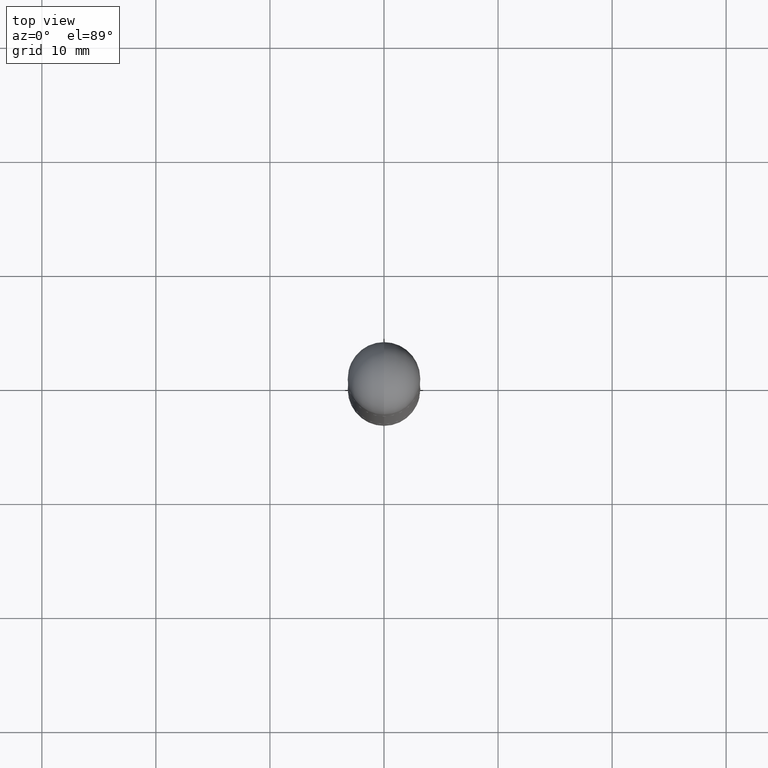
[diagram: clean part render]
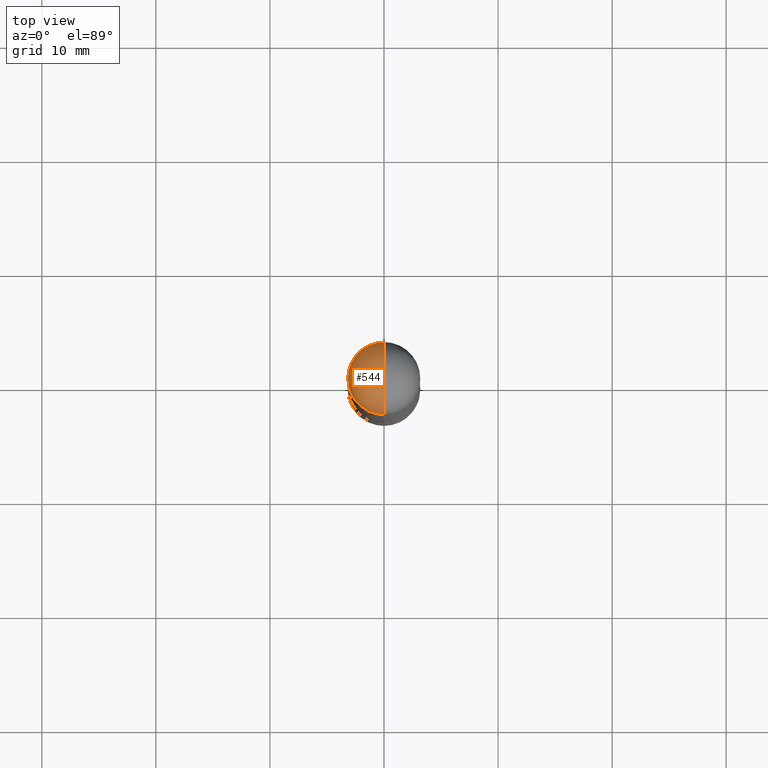
[diagram: same view with one face highlighted and labeled with its STEP entity id]
A machine part, top view. The second image highlights one B-rep face of the part: STEP entity #544.
In plain terms, the highlighted spherical surface has radius 3.175 mm.
Its self-contained STEP definition (entity closure, byte-faithful):
#4 = DIRECTION ( 'NONE',  ( 2.445468806185136597E-29, -3.491481338843145583E-15, 1.000000000000000000 ) ) ;
#5 = DIRECTION ( 'NONE',  ( 2.445468806185136597E-29, -3.491481338843145583E-15, 1.000000000000000000 ) ) ;
#7 = AXIS2_PLACEMENT_3D ( 'NONE', #644, #702, #696 ) ;
#41 = ORIENTED_EDGE ( 'NONE', *, *, #239, .F. ) ;
#43 = ORIENTED_EDGE ( 'NONE', *, *, #677, .T. ) ;
#64 = AXIS2_PLACEMENT_3D ( 'NONE', #216, #4, #392 ) ;
#68 = CARTESIAN_POINT ( 'NONE',  ( -8.575622497213856334E-16, -0.1250000000000086320, -0.1250000000000008882 ) ) ;
#73 = CARTESIAN_POINT ( 'NONE',  ( 5.476868636775814291E-29, -8.766450547892521992E-15, -0.1250000000000004441 ) ) ;
#74 = AXIS2_PLACEMENT_3D ( 'NONE', #256, #750, #698 ) ;
#147 = CIRCLE ( 'NONE', #64, 0.1250000000000000000 ) ;
#180 = VERTEX_POINT ( 'NONE', #617 ) ;
#181 = VERTEX_POINT ( 'NONE', #501 ) ;
#192 = FACE_OUTER_BOUND ( 'NONE', #215, .T. ) ;
#210 = EDGE_CURVE ( 'NONE', #422, #181, #147, .T. ) ;
#215 = EDGE_LOOP ( 'NONE', ( #41, #43, #733, #665 ) ) ;
#216 = CARTESIAN_POINT ( 'NONE',  ( 5.807988414689700538E-29, -8.292268179752471696E-15, -0.1250000000000004441 ) ) ;
#239 = EDGE_CURVE ( 'NONE', #180, #600, #430, .T. ) ;
#253 = DIRECTION ( 'NONE',  ( -1.000000000000000000, 6.982962677686265922E-15, 4.883557194083112340E-29 ) ) ;
#256 = CARTESIAN_POINT ( 'NONE',  ( 5.476868636775814291E-29, -8.766450547892521992E-15, -0.1250000000000004441 ) ) ;
#364 = AXIS2_PLACEMENT_3D ( 'NONE', #567, #5, #763 ) ;
#392 = DIRECTION ( 'NONE',  ( 1.000000000000000000, -6.982962677686270655E-15, 0.000000000000000000 ) ) ;
#422 = VERTEX_POINT ( 'NONE', #634 ) ;
#430 = CIRCLE ( 'NONE', #7, 0.1250000000000001943 ) ;
#491 = DIRECTION ( 'NONE',  ( -6.982962677686265133E-15, -1.000000000000000000, 0.000000000000000000 ) ) ;
#501 = CARTESIAN_POINT ( 'NONE',  ( -0.1250000000000000000, -6.780053178997941168E-15, -0.1250000000000004441 ) ) ;
#536 = AXIS2_PLACEMENT_3D ( 'NONE', #73, #253, #491 ) ;
#544 = ADVANCED_FACE ( 'NONE', ( #192 ), #744, .T. ) ;
#567 = CARTESIAN_POINT ( 'NONE',  ( 5.807988414689700538E-29, -8.292268179752471696E-15, -0.1250000000000004441 ) ) ;
#600 = VERTEX_POINT ( 'NONE', #68 ) ;
#617 = CARTESIAN_POINT ( 'NONE',  ( 5.787897026856327965E-29, -9.195231672753244292E-15, -2.561107494060246644E-16 ) ) ;
#634 = CARTESIAN_POINT ( 'NONE',  ( 8.728703347108403340E-16, 0.1249999999999915623, -0.1250000000000000000 ) ) ;
#644 = CARTESIAN_POINT ( 'NONE',  ( 5.476868636775814291E-29, -8.766450547892521992E-15, -0.1250000000000004441 ) ) ;
#650 = CIRCLE ( 'NONE', #536, 0.1250000000000001943 ) ;
#652 = EDGE_CURVE ( 'NONE', #181, #600, #721, .T. ) ;
#665 = ORIENTED_EDGE ( 'NONE', *, *, #652, .T. ) ;
#677 = EDGE_CURVE ( 'NONE', #180, #422, #650, .T. ) ;
#696 = DIRECTION ( 'NONE',  ( 6.860497997771529196E-15, 1.000000000000000000, 0.000000000000000000 ) ) ;
#698 = DIRECTION ( 'NONE',  ( 6.982962677686265922E-15, 1.000000000000000000, 3.551402391763536859E-15 ) ) ;
#702 = DIRECTION ( 'NONE',  ( 1.000000000000000000, -6.860497997771530774E-15, -4.840798879624142912E-29 ) ) ;
#721 = CIRCLE ( 'NONE', #364, 0.1250000000000000000 ) ;
#733 = ORIENTED_EDGE ( 'NONE', *, *, #210, .T. ) ;
#744 = SPHERICAL_SURFACE ( 'NONE', #74, 0.1250000000000001943 ) ;
#750 = DIRECTION ( 'NONE',  ( 1.000000000000000000, -6.982962677686265922E-15, -4.883557194083112901E-29 ) ) ;
#763 = DIRECTION ( 'NONE',  ( 1.000000000000000000, -6.982962677686270655E-15, 0.000000000000000000 ) ) ;